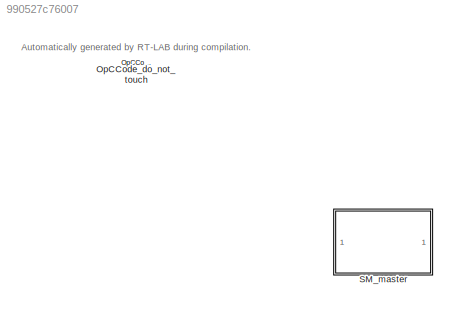
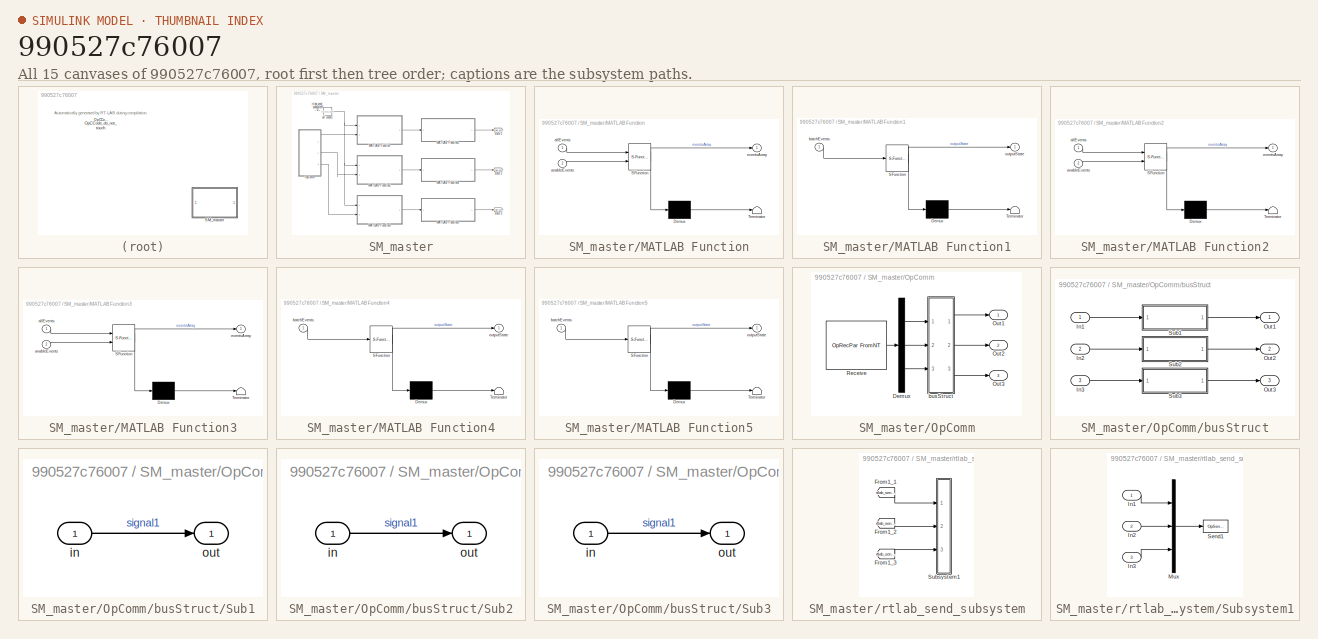
[diagram: thumbnail index - all 15 canvases of the model, root first then tree order]
MODEL slx_990527c76007
KIND model
CONFIG AbsTol = auto
CONFIG EnableMultiTasking = on
CONFIG FixedStep = 0.001
CONFIG MaxStep = auto
CONFIG MinStep = auto
CONFIG RelTol = 1e-3
CONFIG SampleTimeConstraint = Unconstrained
CONFIG SolverName = ode4
CONFIG StartTime = 0.0
CONFIG StopTime = inf
WORKSPACE source: MATLAB code (in-file)
WORKSPACE code: addpath src/model
WORKSPACE code: addpath src/utils
WORKSPACE utils1 = StateMachineUtils
WORKSPACE utils1 = utils1.loadEventsInAds('resources/tct/ALLEVENT.ADS')
WORKSPACE utils1 = utils1.loadDisabledEventsInPdt('resources/tct/supervisor1/DATA_SIMSUP1_MG1.PDT')
WORKSPACE utils1 = utils1.loadTransitionsInAds('resources/tct/supervisor1/SIMSUP1_MG1.ADS')
WORKSPACE encodedStates1 = StateEncoder.encode(utils1.statesArray)
WORKSPACE transitions1 = utils1.transitions
WORKSPACE allEvents1 = utils1.eventsArray
WORKSPACE utils2 = StateMachineUtils
WORKSPACE utils2 = utils2.loadEventsInAds('resources/tct/ALLEVENT.ADS')
WORKSPACE utils2 = utils2.loadDisabledEventsInPdt('resources/tct/supervisor2/DATA_SIMSUP2_MG1.PDT')
WORKSPACE utils2 = utils2.loadTransitionsInAds('resources/tct/supervisor2/SIMSUP2_MG1.ADS')
WORKSPACE encodedStates2 = StateEncoder.encode(utils2.statesArray)
WORKSPACE transitions2 = utils2.transitions
WORKSPACE allEvents2 = utils2.eventsArray
WORKSPACE utils3 = StateMachineUtils
WORKSPACE utils3 = utils3.loadEventsInAds('resources/tct/ALLEVENT.ADS')
WORKSPACE utils3 = utils3.loadDisabledEventsInPdt('resources/tct/supervisor3/DATA_SIMSUP3_MG1.PDT')
WORKSPACE utils3 = utils3.loadTransitionsInAds('resources/tct/supervisor3/SIMSUP3_MG1.ADS')
WORKSPACE encodedStates3 = StateEncoder.encode(utils3.statesArray)
WORKSPACE transitions3 = utils3.transitions
WORKSPACE allEvents3 = utils3.eventsArray
BLOCK [Reference] OpCCode_do_not_touch  REF=opal_lib/Communication/OpCCode
  Ports = []
  SourceBlock = opal_lib/Communication/OpCCode
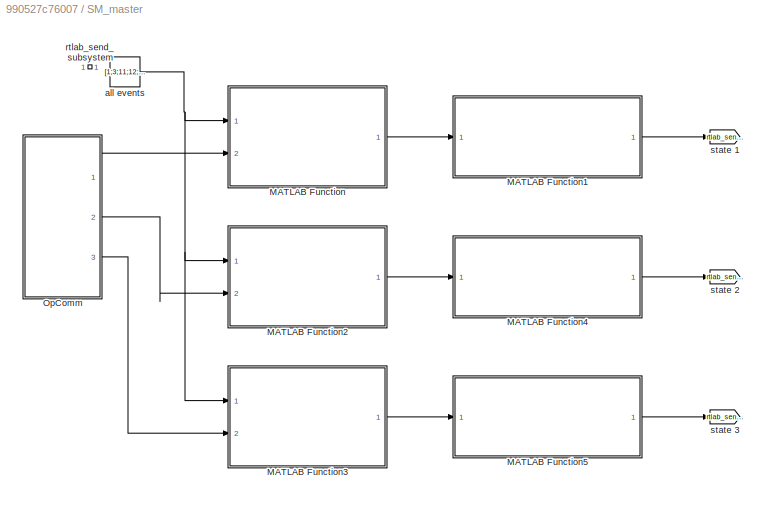
BLOCK [SubSystem] SM_master
  Ports = []
  RequestExecContextInheritance = off
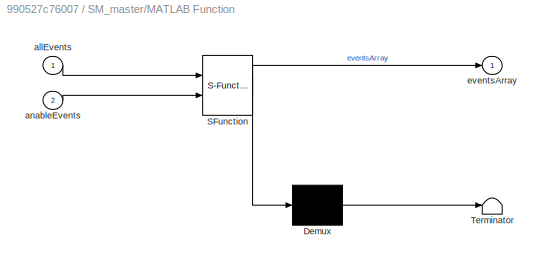
BLOCK [SubSystem] SM_master/MATLAB Function
  ErrorFcn = Stateflow.Translate.translate
  PermitHierarchicalResolution = ExplicitOnly
  Ports = [2, 1]
  RequestExecContextInheritance = off
  SFBlockType = MATLAB Function
  TreatAsAtomicUnit = on
BLOCK [Demux] SM_master/MATLAB Function/ Demux 
  Outputs = 1
  Ports = [1, 1]
BLOCK [S-Function] SM_master/MATLAB Function/ SFunction 
  EnableBusSupport = on
  FunctionName = sf_sfun
  PortCounts = [2 2]
  Ports = [2, 2]
  SFcnIsStateOwnerBlock = off
  SFunctionDeploymentMode = off
  Tag = Stateflow S-Function 2
BLOCK [Terminator] SM_master/MATLAB Function/ Terminator 
BLOCK [Inport] SM_master/MATLAB Function/allEvents
BLOCK [Inport] SM_master/MATLAB Function/anableEvents
  Port = 2
BLOCK [Outport] SM_master/MATLAB Function/eventsArray
BLOCK [SubSystem] SM_master/MATLAB Function1
  ErrorFcn = Stateflow.Translate.translate
  PermitHierarchicalResolution = ExplicitOnly
  Ports = [1, 1]
  RequestExecContextInheritance = off
  SFBlockType = MATLAB Function
  TreatAsAtomicUnit = on
BLOCK [Demux] SM_master/MATLAB Function1/ Demux 
  Outputs = 1
  Ports = [1, 1]
BLOCK [S-Function] SM_master/MATLAB Function1/ SFunction 
  EnableBusSupport = on
  FunctionName = sf_sfun
  Parameters = allEvents1,encodedStates1,transitions1
  PortCounts = [1 2]
  Ports = [1, 2]
  SFcnIsStateOwnerBlock = off
  SFunctionDeploymentMode = off
  Tag = Stateflow S-Function 1
BLOCK [Terminator] SM_master/MATLAB Function1/ Terminator 
BLOCK [Inport] SM_master/MATLAB Function1/batchEvents
BLOCK [Outport] SM_master/MATLAB Function1/outputState
BLOCK [SubSystem] SM_master/MATLAB Function2
  ErrorFcn = Stateflow.Translate.translate
  PermitHierarchicalResolution = ExplicitOnly
  Ports = [2, 1]
  RequestExecContextInheritance = off
  SFBlockType = MATLAB Function
  TreatAsAtomicUnit = on
BLOCK [Demux] SM_master/MATLAB Function2/ Demux 
  Outputs = 1
  Ports = [1, 1]
BLOCK [S-Function] SM_master/MATLAB Function2/ SFunction 
  EnableBusSupport = on
  FunctionName = sf_sfun
  PortCounts = [2 2]
  Ports = [2, 2]
  SFcnIsStateOwnerBlock = off
  SFunctionDeploymentMode = off
  Tag = Stateflow S-Function 3
BLOCK [Terminator] SM_master/MATLAB Function2/ Terminator 
BLOCK [Inport] SM_master/MATLAB Function2/allEvents
BLOCK [Inport] SM_master/MATLAB Function2/anableEvents
  Port = 2
BLOCK [Outport] SM_master/MATLAB Function2/eventsArray
BLOCK [SubSystem] SM_master/MATLAB Function3
  ErrorFcn = Stateflow.Translate.translate
  PermitHierarchicalResolution = ExplicitOnly
  Ports = [2, 1]
  RequestExecContextInheritance = off
  SFBlockType = MATLAB Function
  TreatAsAtomicUnit = on
BLOCK [Demux] SM_master/MATLAB Function3/ Demux 
  Outputs = 1
  Ports = [1, 1]
BLOCK [S-Function] SM_master/MATLAB Function3/ SFunction 
  EnableBusSupport = on
  FunctionName = sf_sfun
  PortCounts = [2 2]
  Ports = [2, 2]
  SFcnIsStateOwnerBlock = off
  SFunctionDeploymentMode = off
  Tag = Stateflow S-Function 4
BLOCK [Terminator] SM_master/MATLAB Function3/ Terminator 
BLOCK [Inport] SM_master/MATLAB Function3/allEvents
BLOCK [Inport] SM_master/MATLAB Function3/anableEvents
  Port = 2
BLOCK [Outport] SM_master/MATLAB Function3/eventsArray
BLOCK [SubSystem] SM_master/MATLAB Function4
  ErrorFcn = Stateflow.Translate.translate
  PermitHierarchicalResolution = ExplicitOnly
  Ports = [1, 1]
  RequestExecContextInheritance = off
  SFBlockType = MATLAB Function
  TreatAsAtomicUnit = on
BLOCK [Demux] SM_master/MATLAB Function4/ Demux 
  Outputs = 1
  Ports = [1, 1]
BLOCK [S-Function] SM_master/MATLAB Function4/ SFunction 
  EnableBusSupport = on
  FunctionName = sf_sfun
  Parameters = allEvents2,encodedStates2,transitions2
  PortCounts = [1 2]
  Ports = [1, 2]
  SFcnIsStateOwnerBlock = off
  SFunctionDeploymentMode = off
  Tag = Stateflow S-Function 5
BLOCK [Terminator] SM_master/MATLAB Function4/ Terminator 
BLOCK [Inport] SM_master/MATLAB Function4/batchEvents
BLOCK [Outport] SM_master/MATLAB Function4/outputState
BLOCK [SubSystem] SM_master/MATLAB Function5
  ErrorFcn = Stateflow.Translate.translate
  PermitHierarchicalResolution = ExplicitOnly
  Ports = [1, 1]
  RequestExecContextInheritance = off
  SFBlockType = MATLAB Function
  TreatAsAtomicUnit = on
BLOCK [Demux] SM_master/MATLAB Function5/ Demux 
  Outputs = 1
  Ports = [1, 1]
BLOCK [S-Function] SM_master/MATLAB Function5/ SFunction 
  EnableBusSupport = on
  FunctionName = sf_sfun
  Parameters = allEvents3,encodedStates3,transitions3
  PortCounts = [1 2]
  Ports = [1, 2]
  SFcnIsStateOwnerBlock = off
  SFunctionDeploymentMode = off
  Tag = Stateflow S-Function 6
BLOCK [Terminator] SM_master/MATLAB Function5/ Terminator 
BLOCK [Inport] SM_master/MATLAB Function5/batchEvents
BLOCK [Outport] SM_master/MATLAB Function5/outputState
BLOCK [SubSystem] SM_master/OpComm
  Ports = [0, 3]
  RequestExecContextInheritance = off
BLOCK [Demux] SM_master/OpComm/Demux
  Outputs = [3  3  3]
  Ports = [1, 3]
BLOCK [Outport] SM_master/OpComm/Out1
BLOCK [Outport] SM_master/OpComm/Out2
  Port = 2
BLOCK [Outport] SM_master/OpComm/Out3
  Port = 3
BLOCK [Reference] SM_master/OpComm/Receive  REF=opal_lib/Communication/OpRecPar
FromNT
  Ports = [0, 1]
  SourceBlock = opal_lib/Communication/OpRecPar\nFromNT
  SourceType = OPAL Receive Icon
BLOCK [SubSystem] SM_master/OpComm/busStruct
  Ports = [3, 3]
  RequestExecContextInheritance = off
BLOCK [Inport] SM_master/OpComm/busStruct/In1
BLOCK [Inport] SM_master/OpComm/busStruct/In2
  Port = 2
BLOCK [Inport] SM_master/OpComm/busStruct/In3
  Port = 3
BLOCK [Outport] SM_master/OpComm/busStruct/Out1
BLOCK [Outport] SM_master/OpComm/busStruct/Out2
  Port = 2
BLOCK [Outport] SM_master/OpComm/busStruct/Out3
  Port = 3
BLOCK [SubSystem] SM_master/OpComm/busStruct/Sub1
  Ports = [1, 1]
  RequestExecContextInheritance = off
BLOCK [Inport] SM_master/OpComm/busStruct/Sub1/in
BLOCK [Outport] SM_master/OpComm/busStruct/Sub1/out
BLOCK [SubSystem] SM_master/OpComm/busStruct/Sub2
  Ports = [1, 1]
  RequestExecContextInheritance = off
BLOCK [Inport] SM_master/OpComm/busStruct/Sub2/in
BLOCK [Outport] SM_master/OpComm/busStruct/Sub2/out
BLOCK [SubSystem] SM_master/OpComm/busStruct/Sub3
  Ports = [1, 1]
  RequestExecContextInheritance = off
BLOCK [Inport] SM_master/OpComm/busStruct/Sub3/in
BLOCK [Outport] SM_master/OpComm/busStruct/Sub3/out
BLOCK [Constant] SM_master/all events
  Value = [1;3;11;12;13;14;16;21;23;25;27;31;32;33;34;36;41;43;51;52;54;56;58;61;63]
BLOCK [SubSystem] SM_master/rtlab_send_subsystem
  Ports = []
  Priority = -100
  RequestExecContextInheritance = off
BLOCK [From] SM_master/rtlab_send_subsystem/From1_1
  GotoTag = rtlab_send_1
  TagVisibility = global
BLOCK [From] SM_master/rtlab_send_subsystem/From1_2
  GotoTag = rtlab_send_2
  TagVisibility = global
BLOCK [From] SM_master/rtlab_send_subsystem/From1_3
  GotoTag = rtlab_send_3
  TagVisibility = global
BLOCK [SubSystem] SM_master/rtlab_send_subsystem/Subsystem1
  Ports = [3]
  RequestExecContextInheritance = off
BLOCK [Inport] SM_master/rtlab_send_subsystem/Subsystem1/In1
BLOCK [Inport] SM_master/rtlab_send_subsystem/Subsystem1/In2
  Port = 2
BLOCK [Inport] SM_master/rtlab_send_subsystem/Subsystem1/In3
  Port = 3
BLOCK [Mux] SM_master/rtlab_send_subsystem/Subsystem1/Mux
  Inputs = 3
  Ports = [3, 1]
BLOCK [Reference] SM_master/rtlab_send_subsystem/Subsystem1/Send1  REF=opal_lib/Communication/OpSendToNT
  Ports = [1]
  SourceBlock = opal_lib/Communication/OpSendToNT
  SourceType = OPAL Send Icon
BLOCK [Goto] SM_master/state 1
  GotoTag = rtlab_send_1
  TagVisibility = global
BLOCK [Goto] SM_master/state 2
  GotoTag = rtlab_send_2
  TagVisibility = global
BLOCK [Goto] SM_master/state 3
  GotoTag = rtlab_send_3
  TagVisibility = global
ANNOTATION (root): Automatically generated by RT-LAB during compilation.
LINE SM_master/MATLAB Function1:1 -> SM_master/state 1:1
LINE SM_master/MATLAB Function2:1 -> SM_master/MATLAB Function4:1
LINE SM_master/MATLAB Function3:1 -> SM_master/MATLAB Function5:1
LINE SM_master/MATLAB Function4:1 -> SM_master/state 2:1
LINE SM_master/MATLAB Function5:1 -> SM_master/state 3:1
LINE SM_master/MATLAB Function:1 -> SM_master/MATLAB Function1:1
LINE SM_master/OpComm/Demux:1 -> SM_master/OpComm/busStruct:1
LINE SM_master/OpComm/Demux:2 -> SM_master/OpComm/busStruct:2
LINE SM_master/OpComm/Demux:3 -> SM_master/OpComm/busStruct:3
LINE SM_master/OpComm/Receive:1 -> SM_master/OpComm/Demux:1
LINE SM_master/OpComm/busStruct/In1:1 -> SM_master/OpComm/busStruct/Sub1:1
LINE SM_master/OpComm/busStruct/In2:1 -> SM_master/OpComm/busStruct/Sub2:1
LINE SM_master/OpComm/busStruct/In3:1 -> SM_master/OpComm/busStruct/Sub3:1
LINE SM_master/OpComm/busStruct/Sub1/in:1 -> SM_master/OpComm/busStruct/Sub1/out:1
LINE SM_master/OpComm/busStruct/Sub1:1 -> SM_master/OpComm/busStruct/Out1:1
LINE SM_master/OpComm/busStruct/Sub2/in:1 -> SM_master/OpComm/busStruct/Sub2/out:1
LINE SM_master/OpComm/busStruct/Sub2:1 -> SM_master/OpComm/busStruct/Out2:1
LINE SM_master/OpComm/busStruct/Sub3/in:1 -> SM_master/OpComm/busStruct/Sub3/out:1
LINE SM_master/OpComm/busStruct/Sub3:1 -> SM_master/OpComm/busStruct/Out3:1
LINE SM_master/OpComm/busStruct:1 -> SM_master/OpComm/Out1:1
LINE SM_master/OpComm/busStruct:2 -> SM_master/OpComm/Out2:1
LINE SM_master/OpComm/busStruct:3 -> SM_master/OpComm/Out3:1
LINE SM_master/OpComm:1 -> SM_master/MATLAB Function:2
LINE SM_master/OpComm:2 -> SM_master/MATLAB Function2:2
LINE SM_master/OpComm:3 -> SM_master/MATLAB Function3:2
NET SM_master/all events:1 -> SM_master/MATLAB Function2:1, SM_master/MATLAB Function3:1, SM_master/MATLAB Function:1
LINE SM_master/rtlab_send_subsystem/From1_1:1 -> SM_master/rtlab_send_subsystem/Subsystem1:1
LINE SM_master/rtlab_send_subsystem/From1_2:1 -> SM_master/rtlab_send_subsystem/Subsystem1:2
LINE SM_master/rtlab_send_subsystem/From1_3:1 -> SM_master/rtlab_send_subsystem/Subsystem1:3
LINE SM_master/rtlab_send_subsystem/Subsystem1/In1:1 -> SM_master/rtlab_send_subsystem/Subsystem1/Mux:1
LINE SM_master/rtlab_send_subsystem/Subsystem1/In2:1 -> SM_master/rtlab_send_subsystem/Subsystem1/Mux:2
LINE SM_master/rtlab_send_subsystem/Subsystem1/In3:1 -> SM_master/rtlab_send_subsystem/Subsystem1/Mux:3
LINE SM_master/rtlab_send_subsystem/Subsystem1/Mux:1 -> SM_master/rtlab_send_subsystem/Subsystem1/Send1:1
note: NET lines group one-source signal fan-out (src -> all destinations, sorted); 1:1 wires keep LINE
CHART SM_master/MATLAB Function1 states=1 transitions=1
  STATE_LABEL 'eML_blk_kernel()'
  STATE_LABEL 'SCRIPT:\nfunction outputState  = stateMachine1(batchEvents, encodedStates1, transitions1, allEvents1)\n% State Machine with parameters from files.\n% Receives a batch of events and process one event at time, starting with\n% the event of index 1.\n% batchEvents: array with 0s and 1s where 1 is the enabled event while 0,\n% is disabled event;\n% allEvents: numbers of the events;\n% transitions: matrix of t...<+732ch>'
CHART SM_master/MATLAB Function states=1 transitions=1
  STATE_LABEL 'eML_blk_kernel()'
  STATE_LABEL 'SCRIPT:\nfunction eventsArray = eventsGenerator(allEvents, anableEvents)\n\n[~, indexes] = ismember(anableEvents, allEvents);\n\neventsArray = zeros(length(allEvents), 1);\n\neventsArray(indexes) = 1;\n'  <repeated x3 — deduplicated; at blocks: MATLAB Function, MATLAB Function2, MATLAB Function3>
CHART SM_master/MATLAB Function2 states=1 transitions=1
  STATE_LABEL 'eML_blk_kernel()'
CHART SM_master/MATLAB Function3 states=1 transitions=1
  STATE_LABEL 'eML_blk_kernel()'
CHART SM_master/MATLAB Function4 states=1 transitions=1
  STATE_LABEL 'eML_blk_kernel()'
  STATE_LABEL 'SCRIPT:\nfunction outputState  = stateMachine2(batchEvents, encodedStates2, transitions2, allEvents2)\n% State Machine with parameters from files.\n% Receives a batch of events and process one event at time, starting with\n% the event of index 1.\n% batchEvents: array with 0s and 1s where 1 is the enabled event while 0,\n% is disabled event;\n% allEvents: numbers of the events;\n% transitions: matrix of t...<+732ch>'
CHART SM_master/MATLAB Function5 states=1 transitions=1
  STATE_LABEL 'eML_blk_kernel()'
  STATE_LABEL 'SCRIPT:\nfunction outputState  = stateMachine3(batchEvents, encodedStates3, transitions3, allEvents3)\n% State Machine with parameters from files.\n% Receives a batch of events and process one event at time, starting with\n% the event of index 1.\n% batchEvents: array with 0s and 1s where 1 is the enabled event while 0,\n% is disabled event;\n% allEvents: numbers of the events;\n% transitions: matrix of t...<+732ch>'
CHART  states=0 transitions=0
CHART  states=0 transitions=0
CHART  states=0 transitions=0
CHART  states=0 transitions=0
CHART  states=0 transitions=0
CHART  states=0 transitions=0
